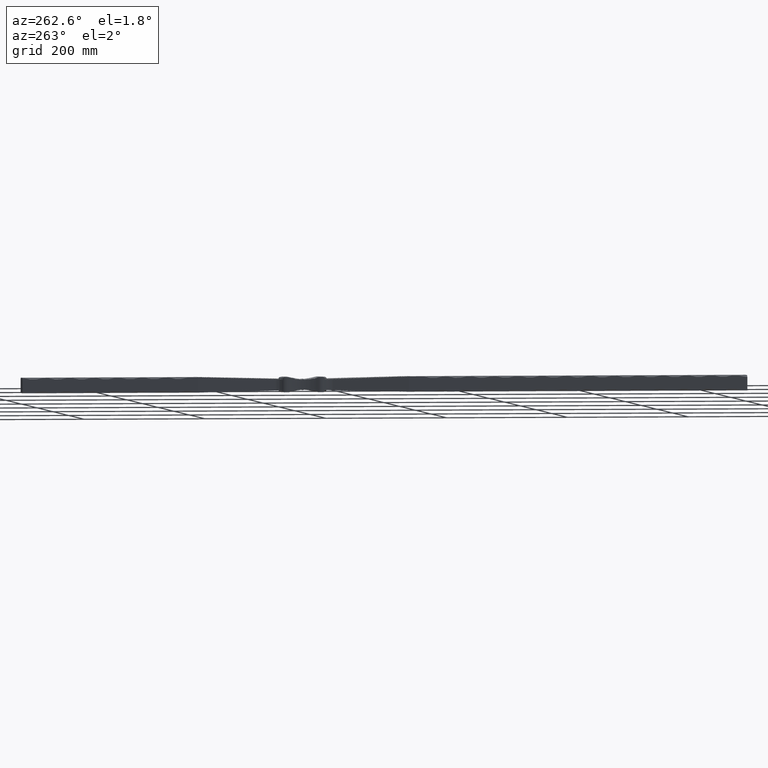
[diagram: clean part render]
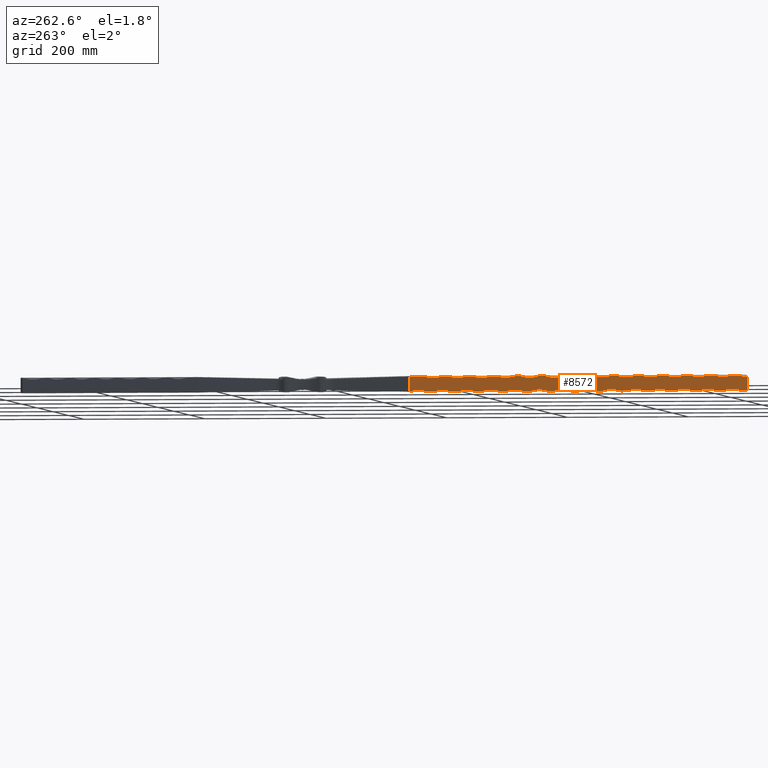
[diagram: same view with one face highlighted and labeled with its STEP entity id]
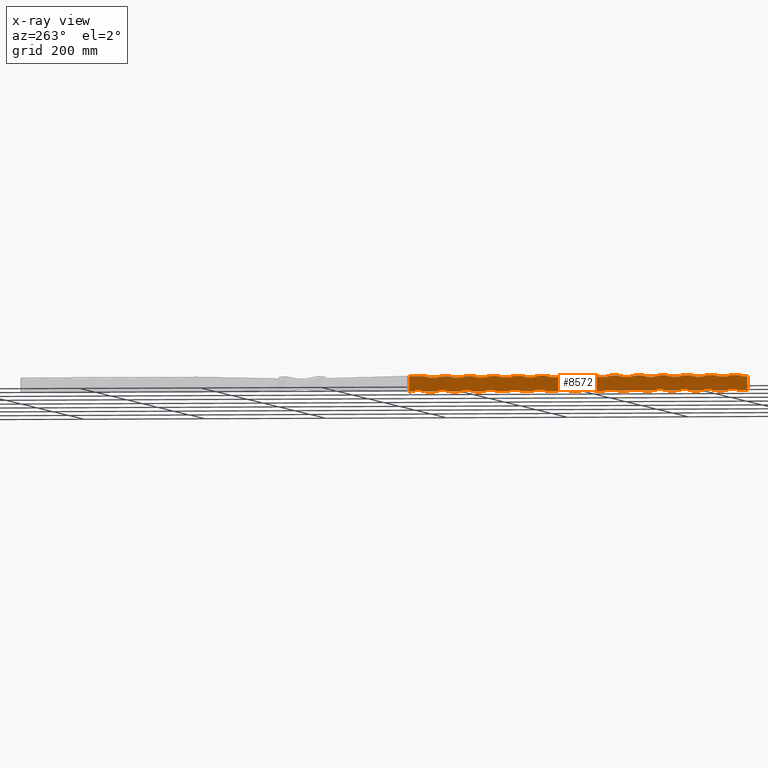
[diagram: x-ray of the same camera — body ghosted, the highlighted face saturated]
A machine part, auxiliary view. The second image highlights one B-rep face of the part: STEP entity #8572.
The next image is the same camera in x-ray: the body ghosted, the highlighted face saturated — about 0% of this face is hidden behind the body in this view.
In plain terms, the highlighted planar face has unit normal (1, 0, -0).
Its self-contained STEP definition (entity closure, byte-faithful):
#27 = DIRECTION ( 'NONE',  ( -1.500301384628588400E-16, 0.000000000000000000, -1.000000000000000000 ) ) ;
#43 = DIRECTION ( 'NONE',  ( -0.000000000000000000, -1.000000000000000000, -0.000000000000000000 ) ) ;
#110 = VERTEX_POINT ( 'NONE', #2575 ) ;
#187 = ORIENTED_EDGE ( 'NONE', *, *, #38615, .F. ) ;
#249 = EDGE_CURVE ( 'NONE', #14212, #19710, #26442, .T. ) ;
#343 = EDGE_CURVE ( 'NONE', #16318, #9540, #40575, .T. ) ;
#345 = VERTEX_POINT ( 'NONE', #5044 ) ;
#428 = ORIENTED_EDGE ( 'NONE', *, *, #8434, .T. ) ;
#446 = VERTEX_POINT ( 'NONE', #22291 ) ;
#491 = DIRECTION ( 'NONE',  ( 1.000000000000000000, 0.000000000000000000, -1.387778780781445676E-16 ) ) ;
#977 = CARTESIAN_POINT ( 'NONE',  ( -12.50000000000000178, 560.0000000000000000, -12.50000000000000000 ) ) ;
#1097 = CARTESIAN_POINT ( 'NONE',  ( -12.49999999999999822, 560.0000000000000000, 12.50000000000000000 ) ) ;
#1100 = EDGE_CURVE ( 'NONE', #5928, #26153, #34288, .T. ) ;
#1894 = VERTEX_POINT ( 'NONE', #25773 ) ;
#1989 = ORIENTED_EDGE ( 'NONE', *, *, #14621, .F. ) ;
#2013 = CARTESIAN_POINT ( 'NONE',  ( -12.49999999999997513, 160.0000000000000284, 56.25000000000004974 ) ) ;
#2065 = EDGE_CURVE ( 'NONE', #19857, #8097, #44931, .T. ) ;
#2107 = VECTOR ( 'NONE', #12495, 1000.000000000000000 ) ;
#2151 = EDGE_CURVE ( 'NONE', #23987, #14212, #11104, .T. ) ;
#2243 = EDGE_CURVE ( 'NONE', #40638, #20077, #26868, .T. ) ;
#2387 = DIRECTION ( 'NONE',  ( -0.000000000000000000, -1.000000000000000000, -0.000000000000000000 ) ) ;
#2522 = VERTEX_POINT ( 'NONE', #4083 ) ;
#2575 = CARTESIAN_POINT ( 'NONE',  ( -12.50000000000000178, 0.000000000000000000, -12.50000000000000000 ) ) ;
#2597 = LINE ( 'NONE', #5432, #8208 ) ;
#2660 = VECTOR ( 'NONE', #27444, 1000.000000000000000 ) ;
#2815 = EDGE_CURVE ( 'NONE', #46438, #28044, #15583, .T. ) ;
#2890 = CARTESIAN_POINT ( 'NONE',  ( -12.50000000000001066, 425.0000000000000568, -56.25000000000004974 ) ) ;
#2907 = EDGE_CURVE ( 'NONE', #34585, #32897, #12154, .T. ) ;
#3086 = CIRCLE ( 'NONE', #27284, 46.25000000000004263 ) ;
#3091 = ORIENTED_EDGE ( 'NONE', *, *, #29567, .F. ) ;
#3160 = ORIENTED_EDGE ( 'NONE', *, *, #12860, .T. ) ;
#3223 = CARTESIAN_POINT ( 'NONE',  ( -12.49999999999998579, 135.0000000000000284, 12.50000000000000000 ) ) ;
#3234 = AXIS2_PLACEMENT_3D ( 'NONE', #20227, #30431, #12502 ) ;
#3317 = CIRCLE ( 'NONE', #19845, 46.25000000000004263 ) ;
#3323 = EDGE_CURVE ( 'NONE', #32165, #45237, #7608, .T. ) ;
#3507 = VERTEX_POINT ( 'NONE', #23798 ) ;
#3535 = CARTESIAN_POINT ( 'NONE',  ( -12.50000000000000355, 250.0000000000000000, -12.49999999999999645 ) ) ;
#3606 = EDGE_CURVE ( 'NONE', #10116, #32165, #44846, .T. ) ;
#3608 = DIRECTION ( 'NONE',  ( -1.500301384628588400E-16, -7.201446646217224322E-15, -1.000000000000000000 ) ) ;
#3657 = ORIENTED_EDGE ( 'NONE', *, *, #40237, .T. ) ;
#3710 = AXIS2_PLACEMENT_3D ( 'NONE', #31624, #6101, #42356 ) ;
#3732 = ORIENTED_EDGE ( 'NONE', *, *, #41627, .F. ) ;
#3761 = EDGE_CURVE ( 'NONE', #345, #25442, #43120, .T. ) ;
#3821 = CARTESIAN_POINT ( 'NONE',  ( -12.50000000000000355, 480.0000000000000000, -12.49999999999999645 ) ) ;
#3881 = EDGE_CURVE ( 'NONE', #19710, #9174, #31262, .T. ) ;
#3938 = CARTESIAN_POINT ( 'NONE',  ( -12.49999999999999822, 560.0000000000000000, 12.50000000000000000 ) ) ;
#4020 = EDGE_CURVE ( 'NONE', #31723, #28780, #12103, .T. ) ;
#4063 = CARTESIAN_POINT ( 'NONE',  ( -12.50000000000000178, 560.0000000000000000, -12.50000000000000000 ) ) ;
#4083 = CARTESIAN_POINT ( 'NONE',  ( -12.49999999999999645, 105.0000000000000000, 12.50000000000000000 ) ) ;
#4112 = DIRECTION ( 'NONE',  ( -0.000000000000000000, -1.000000000000000000, -0.000000000000000000 ) ) ;
#4616 = DIRECTION ( 'NONE',  ( -1.500301384628588647E-16, 0.000000000000000000, -1.000000000000000000 ) ) ;
#4637 = DIRECTION ( 'NONE',  ( -0.000000000000000000, -1.000000000000000000, -0.000000000000000000 ) ) ;
#4704 = CARTESIAN_POINT ( 'NONE',  ( -12.50000000000000355, 530.0000000000000000, -12.49999999999999645 ) ) ;
#4869 = VERTEX_POINT ( 'NONE', #19097 ) ;
#4878 = ORIENTED_EDGE ( 'NONE', *, *, #3881, .T. ) ;
#4886 = DIRECTION ( 'NONE',  ( -1.500301384628588400E-16, 0.000000000000000000, -1.000000000000000000 ) ) ;
#5030 = VECTOR ( 'NONE', #4112, 1000.000000000000000 ) ;
#5044 = CARTESIAN_POINT ( 'NONE',  ( -12.49999999999999645, 305.0000000000000000, 12.50000000000000000 ) ) ;
#5340 = AXIS2_PLACEMENT_3D ( 'NONE', #37337, #44288, #15753 ) ;
#5429 = DIRECTION ( 'NONE',  ( -1.000000000000000000, -0.000000000000000000, 1.387778780781445676E-16 ) ) ;
#5432 = CARTESIAN_POINT ( 'NONE',  ( -12.49999999999999822, 560.0000000000000000, 12.50000000000000000 ) ) ;
#5461 = ORIENTED_EDGE ( 'NONE', *, *, #38900, .F. ) ;
#5563 = ORIENTED_EDGE ( 'NONE', *, *, #15870, .F. ) ;
#5617 = DIRECTION ( 'NONE',  ( -1.000000000000000000, -0.000000000000000000, 1.387778780781445676E-16 ) ) ;
#5854 = CIRCLE ( 'NONE', #46258, 46.25000000000004974 ) ;
#5917 = ORIENTED_EDGE ( 'NONE', *, *, #2065, .T. ) ;
#5928 = VERTEX_POINT ( 'NONE', #6411 ) ;
#6021 = CIRCLE ( 'NONE', #40757, 46.25000000000004974 ) ;
#6101 = DIRECTION ( 'NONE',  ( 1.000000000000000000, 0.000000000000000000, -1.387778780781445676E-16 ) ) ;
#6112 = CARTESIAN_POINT ( 'NONE',  ( -12.50000000000000178, 0.000000000000000000, -12.50000000000000000 ) ) ;
#6152 = AXIS2_PLACEMENT_3D ( 'NONE', #39158, #7140, #10459 ) ;
#6240 = ORIENTED_EDGE ( 'NONE', *, *, #36744, .F. ) ;
#6307 = DIRECTION ( 'NONE',  ( 1.000000000000000000, 0.000000000000000000, -1.387778780781445676E-16 ) ) ;
#6411 = CARTESIAN_POINT ( 'NONE',  ( -12.49999999999998046, 215.0000000000000284, 12.50000000000000000 ) ) ;
#6735 = CARTESIAN_POINT ( 'NONE',  ( -12.50000000000000178, 560.0000000000000000, -12.50000000000000000 ) ) ;
#6972 = ORIENTED_EDGE ( 'NONE', *, *, #32325, .T. ) ;
#7028 = CARTESIAN_POINT ( 'NONE',  ( -12.50000000000000355, 370.0000000000000000, -12.49999999999999645 ) ) ;
#7055 = ORIENTED_EDGE ( 'NONE', *, *, #32860, .F. ) ;
#7098 = VERTEX_POINT ( 'NONE', #34811 ) ;
#7140 = DIRECTION ( 'NONE',  ( -1.000000000000000000, -0.000000000000000000, 1.387778780781445676E-16 ) ) ;
#7251 = AXIS2_PLACEMENT_3D ( 'NONE', #10732, #46691, #25405 ) ;
#7315 = DIRECTION ( 'NONE',  ( 1.000000000000000000, 0.000000000000000000, -1.387778780781445676E-16 ) ) ;
#7355 = CARTESIAN_POINT ( 'NONE',  ( -12.50000000000000355, 200.0000000000000000, -12.49999999999999645 ) ) ;
#7479 = CARTESIAN_POINT ( 'NONE',  ( -12.49999999999998757, 95.00000000000002842, 12.50000000000000000 ) ) ;
#7556 = VECTOR ( 'NONE', #22045, 1000.000000000000000 ) ;
#7608 = CIRCLE ( 'NONE', #10572, 46.25000000000004263 ) ;
#7657 = VERTEX_POINT ( 'NONE', #33741 ) ;
#7683 = DIRECTION ( 'NONE',  ( -0.000000000000000000, -1.000000000000000000, -0.000000000000000000 ) ) ;
#7809 = DIRECTION ( 'NONE',  ( -1.500301384628588400E-16, 0.000000000000000000, -1.000000000000000000 ) ) ;
#8016 = CARTESIAN_POINT ( 'NONE',  ( -12.49999999999996447, 320.0000000000000568, 56.25000000000004974 ) ) ;
#8017 = CARTESIAN_POINT ( 'NONE',  ( -12.50000000000000355, 90.00000000000002842, -12.49999999999999645 ) ) ;
#8097 = VERTEX_POINT ( 'NONE', #18597 ) ;
#8170 = CARTESIAN_POINT ( 'NONE',  ( -12.50000000000000355, 279.9999999999999432, -12.49999999999999645 ) ) ;
#8208 = VECTOR ( 'NONE', #8885, 1000.000000000000000 ) ;
#8270 = ORIENTED_EDGE ( 'NONE', *, *, #11725, .T. ) ;
#8434 = EDGE_CURVE ( 'NONE', #30592, #14331, #45699, .T. ) ;
#8572 = ADVANCED_FACE ( 'NONE', ( #36662 ), #15844, .F. ) ;
#8619 = CARTESIAN_POINT ( 'NONE',  ( -12.49999999999999822, 560.0000000000000000, 12.50000000000000000 ) ) ;
#8785 = AXIS2_PLACEMENT_3D ( 'NONE', #2013, #34308, #21093 ) ;
#8885 = DIRECTION ( 'NONE',  ( -0.000000000000000000, -1.000000000000000000, -0.000000000000000000 ) ) ;
#8896 = ORIENTED_EDGE ( 'NONE', *, *, #28645, .T. ) ;
#8951 = EDGE_CURVE ( 'NONE', #28044, #14873, #16375, .T. ) ;
#9125 = CARTESIAN_POINT ( 'NONE',  ( -12.49999999999996092, 360.0000000000000568, 56.25000000000004974 ) ) ;
#9172 = VECTOR ( 'NONE', #35917, 1000.000000000000000 ) ;
#9174 = VERTEX_POINT ( 'NONE', #3821 ) ;
#9250 = DIRECTION ( 'NONE',  ( -0.000000000000000000, -1.000000000000000000, -0.000000000000000000 ) ) ;
#9267 = ORIENTED_EDGE ( 'NONE', *, *, #25685, .F. ) ;
#9354 = CIRCLE ( 'NONE', #18832, 46.25000000000004263 ) ;
#9503 = CARTESIAN_POINT ( 'NONE',  ( -12.50000000000001066, 385.0000000000000000, -56.25000000000004974 ) ) ;
#9540 = VERTEX_POINT ( 'NONE', #14223 ) ;
#9615 = CARTESIAN_POINT ( 'NONE',  ( -12.49999999999997691, 255.0000000000000568, 12.50000000000000000 ) ) ;
#9800 = VECTOR ( 'NONE', #19638, 1000.000000000000000 ) ;
#9858 = VECTOR ( 'NONE', #17371, 1000.000000000000000 ) ;
#10070 = EDGE_CURVE ( 'NONE', #7098, #23987, #3317, .T. ) ;
#10116 = VERTEX_POINT ( 'NONE', #8017 ) ;
#10459 = DIRECTION ( 'NONE',  ( -1.500301384628588400E-16, -7.201446646217224322E-15, -1.000000000000000000 ) ) ;
#10513 = ORIENTED_EDGE ( 'NONE', *, *, #28752, .T. ) ;
#10548 = LINE ( 'NONE', #6112, #28582 ) ;
#10553 = DIRECTION ( 'NONE',  ( -1.500301384628588400E-16, 0.000000000000000000, -1.000000000000000000 ) ) ;
#10572 = AXIS2_PLACEMENT_3D ( 'NONE', #43528, #11071, #11383 ) ;
#10654 = CARTESIAN_POINT ( 'NONE',  ( -12.49999999999995204, 480.0000000000000568, 56.25000000000004974 ) ) ;
#10732 = CARTESIAN_POINT ( 'NONE',  ( -12.49999999999996625, 280.0000000000000000, 56.25000000000004974 ) ) ;
#10890 = ORIENTED_EDGE ( 'NONE', *, *, #37178, .T. ) ;
#11071 = DIRECTION ( 'NONE',  ( 1.000000000000000000, 0.000000000000000000, -1.387778780781445676E-16 ) ) ;
#11104 = LINE ( 'NONE', #13286, #2660 ) ;
#11198 = CARTESIAN_POINT ( 'NONE',  ( -12.50000000000001066, 505.0000000000000000, -56.25000000000004974 ) ) ;
#11218 = VECTOR ( 'NONE', #43, 1000.000000000000000 ) ;
#11383 = DIRECTION ( 'NONE',  ( -1.500301384628588647E-16, 0.000000000000000000, -1.000000000000000000 ) ) ;
#11588 = CARTESIAN_POINT ( 'NONE',  ( -12.49999999999997158, 335.0000000000000568, 12.50000000000000000 ) ) ;
#11649 = CARTESIAN_POINT ( 'NONE',  ( -12.50000000000000355, 130.0000000000000000, -12.49999999999999645 ) ) ;
#11687 = LINE ( 'NONE', #26820, #2107 ) ;
#11725 = EDGE_CURVE ( 'NONE', #20452, #7098, #23541, .T. ) ;
#11745 = CARTESIAN_POINT ( 'NONE',  ( -12.50000000000000355, 440.0000000000000000, -12.49999999999999645 ) ) ;
#11944 = DIRECTION ( 'NONE',  ( -1.500301384628588400E-16, 0.000000000000000000, -1.000000000000000000 ) ) ;
#12029 = LINE ( 'NONE', #3938, #38526 ) ;
#12103 = CIRCLE ( 'NONE', #23031, 46.25000000000004974 ) ;
#12154 = LINE ( 'NONE', #44345, #38640 ) ;
#12300 = EDGE_CURVE ( 'NONE', #38552, #21418, #6021, .T. ) ;
#12326 = CIRCLE ( 'NONE', #3234, 46.25000000000004263 ) ;
#12495 = DIRECTION ( 'NONE',  ( -0.000000000000000000, -1.000000000000000000, -0.000000000000000000 ) ) ;
#12502 = DIRECTION ( 'NONE',  ( -1.500301384628588647E-16, 0.000000000000000000, -1.000000000000000000 ) ) ;
#12552 = VERTEX_POINT ( 'NONE', #18327 ) ;
#12860 = EDGE_CURVE ( 'NONE', #20077, #10116, #28037, .T. ) ;
#12951 = EDGE_CURVE ( 'NONE', #110, #21240, #10548, .T. ) ;
#12978 = DIRECTION ( 'NONE',  ( -1.500301384628588400E-16, 0.000000000000000000, -1.000000000000000000 ) ) ;
#13013 = DIRECTION ( 'NONE',  ( -0.000000000000000000, -1.000000000000000000, -0.000000000000000000 ) ) ;
#13268 = ORIENTED_EDGE ( 'NONE', *, *, #1100, .F. ) ;
#13286 = CARTESIAN_POINT ( 'NONE',  ( -12.50000000000000178, 560.0000000000000000, -12.50000000000000000 ) ) ;
#13290 = CARTESIAN_POINT ( 'NONE',  ( -12.50000000000000355, 120.0000000000000000, -12.49999999999999645 ) ) ;
#13586 = EDGE_CURVE ( 'NONE', #446, #31723, #17851, .T. ) ;
#13666 = ORIENTED_EDGE ( 'NONE', *, *, #42388, .F. ) ;
#13703 = CARTESIAN_POINT ( 'NONE',  ( -12.49999999999999645, 425.0000000000000000, 12.50000000000000000 ) ) ;
#13801 = CARTESIAN_POINT ( 'NONE',  ( -12.50000000000000355, 10.00000000000001421, -12.49999999999999645 ) ) ;
#14115 = EDGE_CURVE ( 'NONE', #14725, #38552, #24000, .T. ) ;
#14212 = VERTEX_POINT ( 'NONE', #39298 ) ;
#14223 = CARTESIAN_POINT ( 'NONE',  ( -12.49999999999999645, 64.99999999999998579, 12.50000000000000000 ) ) ;
#14270 = CARTESIAN_POINT ( 'NONE',  ( -12.50000000000000178, 560.0000000000000000, -12.50000000000000000 ) ) ;
#14331 = VERTEX_POINT ( 'NONE', #32524 ) ;
#14349 = CARTESIAN_POINT ( 'NONE',  ( -12.50000000000001066, 225.0000000000000000, -56.25000000000004974 ) ) ;
#14367 = CARTESIAN_POINT ( 'NONE',  ( -12.49999999999997868, 120.0000000000000284, 56.25000000000004974 ) ) ;
#14422 = ORIENTED_EDGE ( 'NONE', *, *, #28061, .T. ) ;
#14621 = EDGE_CURVE ( 'NONE', #3507, #29790, #19489, .T. ) ;
#14725 = VERTEX_POINT ( 'NONE', #25848 ) ;
#14759 = ORIENTED_EDGE ( 'NONE', *, *, #2815, .T. ) ;
#14765 = DIRECTION ( 'NONE',  ( -0.000000000000000000, -1.000000000000000000, -0.000000000000000000 ) ) ;
#14820 = DIRECTION ( 'NONE',  ( -1.500301384628588647E-16, 0.000000000000000000, -1.000000000000000000 ) ) ;
#14873 = VERTEX_POINT ( 'NONE', #8170 ) ;
#14924 = ORIENTED_EDGE ( 'NONE', *, *, #343, .F. ) ;
#15007 = EDGE_CURVE ( 'NONE', #9174, #24621, #31857, .T. ) ;
#15046 = CARTESIAN_POINT ( 'NONE',  ( -12.50000000000000355, 490.0000000000000000, -12.49999999999999645 ) ) ;
#15063 = CIRCLE ( 'NONE', #29202, 46.25000000000004263 ) ;
#15184 = CARTESIAN_POINT ( 'NONE',  ( -12.49999999999999112, 560.0000000000000000, 12.50000000000000000 ) ) ;
#15198 = CIRCLE ( 'NONE', #40021, 46.25000000000004263 ) ;
#15294 = DIRECTION ( 'NONE',  ( -0.000000000000000000, -1.000000000000000000, -0.000000000000000000 ) ) ;
#15460 = EDGE_CURVE ( 'NONE', #26387, #30693, #3086, .T. ) ;
#15488 = VECTOR ( 'NONE', #34048, 1000.000000000000000 ) ;
#15490 = ORIENTED_EDGE ( 'NONE', *, *, #33010, .T. ) ;
#15503 = DIRECTION ( 'NONE',  ( -0.000000000000000000, -1.000000000000000000, -0.000000000000000000 ) ) ;
#15583 = CIRCLE ( 'NONE', #31979, 46.25000000000004263 ) ;
#15600 = DIRECTION ( 'NONE',  ( -1.000000000000000000, -0.000000000000000000, 1.387778780781445676E-16 ) ) ;
#15646 = ORIENTED_EDGE ( 'NONE', *, *, #15460, .T. ) ;
#15753 = DIRECTION ( 'NONE',  ( -1.500301384628588400E-16, 0.000000000000000000, -1.000000000000000000 ) ) ;
#15829 = CARTESIAN_POINT ( 'NONE',  ( -12.49999999999999822, 560.0000000000000000, 12.50000000000000000 ) ) ;
#15844 = PLANE ( 'NONE',  #22807 ) ;
#15869 = DIRECTION ( 'NONE',  ( -1.500301384628588647E-16, 0.000000000000000000, -1.000000000000000000 ) ) ;
#15870 = EDGE_CURVE ( 'NONE', #1894, #3507, #5854, .T. ) ;
#15877 = CARTESIAN_POINT ( 'NONE',  ( -12.49999999999998401, 2.081668171172168513E-14, 56.25000000000004974 ) ) ;
#15909 = AXIS2_PLACEMENT_3D ( 'NONE', #16311, #5429, #45282 ) ;
#16311 = CARTESIAN_POINT ( 'NONE',  ( -12.49999999999995914, 400.0000000000000000, 56.25000000000004974 ) ) ;
#16318 = VERTEX_POINT ( 'NONE', #7479 ) ;
#16373 = VERTEX_POINT ( 'NONE', #11588 ) ;
#16375 = LINE ( 'NONE', #23060, #42847 ) ;
#16470 = AXIS2_PLACEMENT_3D ( 'NONE', #15877, #5617, #30819 ) ;
#16483 = DIRECTION ( 'NONE',  ( -1.387778780781445676E-16, 0.000000000000000000, -1.000000000000000000 ) ) ;
#16492 = EDGE_CURVE ( 'NONE', #26153, #36807, #19952, .T. ) ;
#16701 = VECTOR ( 'NONE', #33492, 1000.000000000000000 ) ;
#16726 = VECTOR ( 'NONE', #15503, 1000.000000000000000 ) ;
#16866 = CARTESIAN_POINT ( 'NONE',  ( -12.49999999999999822, 560.0000000000000000, 12.50000000000000000 ) ) ;
#17179 = CARTESIAN_POINT ( 'NONE',  ( -12.49999999999999645, 504.9999999999998863, 12.50000000000000000 ) ) ;
#17227 = DIRECTION ( 'NONE',  ( -1.500301384628588647E-16, 0.000000000000000000, -1.000000000000000000 ) ) ;
#17332 = DIRECTION ( 'NONE',  ( -1.500301384628588647E-16, 0.000000000000000000, -1.000000000000000000 ) ) ;
#17371 = DIRECTION ( 'NONE',  ( -0.000000000000000000, -1.000000000000000000, -0.000000000000000000 ) ) ;
#17383 = CARTESIAN_POINT ( 'NONE',  ( -12.49999999999995737, 535.0000000000000000, 12.50000000000000000 ) ) ;
#17514 = CARTESIAN_POINT ( 'NONE',  ( -12.49999999999999822, 560.0000000000000000, 12.50000000000000000 ) ) ;
#17722 = ORIENTED_EDGE ( 'NONE', *, *, #3761, .F. ) ;
#17830 = DIRECTION ( 'NONE',  ( -0.000000000000000000, -1.000000000000000000, -0.000000000000000000 ) ) ;
#17851 = LINE ( 'NONE', #28732, #16726 ) ;
#18004 = DIRECTION ( 'NONE',  ( -1.000000000000000000, -0.000000000000000000, 1.387778780781445676E-16 ) ) ;
#18016 = VECTOR ( 'NONE', #15294, 1000.000000000000000 ) ;
#18052 = AXIS2_PLACEMENT_3D ( 'NONE', #8016, #15600, #4886 ) ;
#18165 = ORIENTED_EDGE ( 'NONE', *, *, #2243, .T. ) ;
#18327 = CARTESIAN_POINT ( 'NONE',  ( -12.49999999999999645, 384.9999999999999432, 12.50000000000000000 ) ) ;
#18597 = CARTESIAN_POINT ( 'NONE',  ( -12.50000000000000355, 410.0000000000000568, -12.49999999999999645 ) ) ;
#18667 = DIRECTION ( 'NONE',  ( -0.000000000000000000, -0.000000000000000000, -1.000000000000000000 ) ) ;
#18832 = AXIS2_PLACEMENT_3D ( 'NONE', #14349, #40041, #14820 ) ;
#18852 = LINE ( 'NONE', #22788, #9800 ) ;
#18874 = CIRCLE ( 'NONE', #32609, 46.25000000000004263 ) ;
#18914 = ORIENTED_EDGE ( 'NONE', *, *, #23188, .F. ) ;
#19097 = CARTESIAN_POINT ( 'NONE',  ( -12.49999999999999645, 345.0000000000000000, 12.50000000000000000 ) ) ;
#19394 = EDGE_CURVE ( 'NONE', #29790, #21240, #32130, .T. ) ;
#19435 = ORIENTED_EDGE ( 'NONE', *, *, #10070, .T. ) ;
#19489 = LINE ( 'NONE', #17514, #9858 ) ;
#19638 = DIRECTION ( 'NONE',  ( -0.000000000000000000, -1.000000000000000000, -0.000000000000000000 ) ) ;
#19676 = ORIENTED_EDGE ( 'NONE', *, *, #20288, .F. ) ;
#19703 = VERTEX_POINT ( 'NONE', #22146 ) ;
#19710 = VERTEX_POINT ( 'NONE', #15046 ) ;
#19845 = AXIS2_PLACEMENT_3D ( 'NONE', #44285, #40817, #26300 ) ;
#19857 = VERTEX_POINT ( 'NONE', #11745 ) ;
#19952 = LINE ( 'NONE', #15829, #24442 ) ;
#20077 = VERTEX_POINT ( 'NONE', #13290 ) ;
#20089 = VERTEX_POINT ( 'NONE', #17383 ) ;
#20210 = DIRECTION ( 'NONE',  ( -0.000000000000000000, -1.000000000000000000, -0.000000000000000000 ) ) ;
#20227 = CARTESIAN_POINT ( 'NONE',  ( -12.50000000000001066, 265.0000000000000000, -56.25000000000004974 ) ) ;
#20288 = EDGE_CURVE ( 'NONE', #23138, #2522, #43897, .T. ) ;
#20315 = CARTESIAN_POINT ( 'NONE',  ( -12.50000000000000355, 170.0000000000000000, -12.49999999999999645 ) ) ;
#20452 = VERTEX_POINT ( 'NONE', #31179 ) ;
#20472 = CARTESIAN_POINT ( 'NONE',  ( -12.50000000000000355, 40.00000000000000000, -12.49999999999999645 ) ) ;
#20563 = DIRECTION ( 'NONE',  ( -1.000000000000000000, -0.000000000000000000, 1.387778780781445676E-16 ) ) ;
#20625 = ORIENTED_EDGE ( 'NONE', *, *, #22628, .F. ) ;
#20636 = CARTESIAN_POINT ( 'NONE',  ( -12.50000000000000178, 560.0000000000000000, -12.50000000000000000 ) ) ;
#21093 = DIRECTION ( 'NONE',  ( -1.500301384628588400E-16, 0.000000000000000000, -1.000000000000000000 ) ) ;
#21240 = VERTEX_POINT ( 'NONE', #41265 ) ;
#21322 = CARTESIAN_POINT ( 'NONE',  ( -12.50000000000000355, 360.0000000000000000, -12.49999999999999645 ) ) ;
#21418 = VERTEX_POINT ( 'NONE', #40127 ) ;
#21697 = ORIENTED_EDGE ( 'NONE', *, *, #41549, .T. ) ;
#22045 = DIRECTION ( 'NONE',  ( -0.000000000000000000, -1.000000000000000000, -0.000000000000000000 ) ) ;
#22146 = CARTESIAN_POINT ( 'NONE',  ( -12.49999999999996625, 415.0000000000000568, 12.50000000000000000 ) ) ;
#22203 = CARTESIAN_POINT ( 'NONE',  ( -12.49999999999999112, 15.00000000000002665, 12.50000000000000000 ) ) ;
#22291 = CARTESIAN_POINT ( 'NONE',  ( -12.49999999999999645, 464.9999999999998863, 12.50000000000000000 ) ) ;
#22351 = CARTESIAN_POINT ( 'NONE',  ( -12.49999999999999822, 560.0000000000000000, 12.50000000000000000 ) ) ;
#22430 = EDGE_CURVE ( 'NONE', #38697, #23138, #33238, .T. ) ;
#22460 = DIRECTION ( 'NONE',  ( -0.000000000000000000, -1.000000000000000000, -0.000000000000000000 ) ) ;
#22524 = VECTOR ( 'NONE', #9250, 1000.000000000000000 ) ;
#22628 = EDGE_CURVE ( 'NONE', #12552, #7657, #44494, .T. ) ;
#22788 = CARTESIAN_POINT ( 'NONE',  ( -12.50000000000000178, 560.0000000000000000, -12.50000000000000000 ) ) ;
#22807 = AXIS2_PLACEMENT_3D ( 'NONE', #45303, #45146, #16483 ) ;
#22877 = DIRECTION ( 'NONE',  ( 1.000000000000000000, 0.000000000000000000, -1.387778780781445676E-16 ) ) ;
#22896 = LINE ( 'NONE', #26231, #16701 ) ;
#23031 = AXIS2_PLACEMENT_3D ( 'NONE', #41094, #44408, #11944 ) ;
#23055 = ORIENTED_EDGE ( 'NONE', *, *, #2151, .T. ) ;
#23060 = CARTESIAN_POINT ( 'NONE',  ( -12.50000000000000178, 560.0000000000000000, -12.50000000000000000 ) ) ;
#23138 = VERTEX_POINT ( 'NONE', #3223 ) ;
#23188 = EDGE_CURVE ( 'NONE', #28780, #19703, #46164, .T. ) ;
#23212 = VERTEX_POINT ( 'NONE', #3535 ) ;
#23541 = LINE ( 'NONE', #15184, #38765 ) ;
#23642 = ORIENTED_EDGE ( 'NONE', *, *, #14115, .F. ) ;
#23703 = ORIENTED_EDGE ( 'NONE', *, *, #249, .T. ) ;
#23798 = CARTESIAN_POINT ( 'NONE',  ( -12.49999999999999645, 25.00000000000001421, 12.50000000000000000 ) ) ;
#23952 = VECTOR ( 'NONE', #24418, 1000.000000000000000 ) ;
#23987 = VERTEX_POINT ( 'NONE', #4704 ) ;
#24000 = LINE ( 'NONE', #8619, #24579 ) ;
#24418 = DIRECTION ( 'NONE',  ( -0.000000000000000000, -1.000000000000000000, -0.000000000000000000 ) ) ;
#24442 = VECTOR ( 'NONE', #22460, 1000.000000000000000 ) ;
#24452 = AXIS2_PLACEMENT_3D ( 'NONE', #34955, #42070, #17332 ) ;
#24579 = VECTOR ( 'NONE', #41097, 1000.000000000000000 ) ;
#24621 = VERTEX_POINT ( 'NONE', #41822 ) ;
#24656 = VERTEX_POINT ( 'NONE', #21322 ) ;
#24769 = EDGE_CURVE ( 'NONE', #25442, #14725, #42197, .T. ) ;
#24927 = CIRCLE ( 'NONE', #15909, 46.25000000000004974 ) ;
#25184 = CARTESIAN_POINT ( 'NONE',  ( -12.50000000000000355, 399.9999999999999432, -12.49999999999999645 ) ) ;
#25253 = CARTESIAN_POINT ( 'NONE',  ( -12.50000000000001066, 185.0000000000000000, -56.25000000000004974 ) ) ;
#25405 = DIRECTION ( 'NONE',  ( -1.500301384628588400E-16, 0.000000000000000000, -1.000000000000000000 ) ) ;
#25442 = VERTEX_POINT ( 'NONE', #29986 ) ;
#25479 = VERTEX_POINT ( 'NONE', #35674 ) ;
#25685 = EDGE_CURVE ( 'NONE', #4869, #16373, #11687, .T. ) ;
#25773 = CARTESIAN_POINT ( 'NONE',  ( -12.49999999999999112, 55.00000000000002842, 12.50000000000000000 ) ) ;
#25848 = CARTESIAN_POINT ( 'NONE',  ( -12.49999999999999645, 264.9999999999999432, 12.50000000000000000 ) ) ;
#25949 = DIRECTION ( 'NONE',  ( -0.000000000000000000, -1.000000000000000000, -0.000000000000000000 ) ) ;
#26023 = EDGE_CURVE ( 'NONE', #30672, #34585, #9354, .T. ) ;
#26153 = VERTEX_POINT ( 'NONE', #37648 ) ;
#26231 = CARTESIAN_POINT ( 'NONE',  ( -12.50000000000000178, 560.0000000000000000, -12.50000000000000000 ) ) ;
#26278 = VERTEX_POINT ( 'NONE', #20472 ) ;
#26300 = DIRECTION ( 'NONE',  ( -1.500301384628588647E-16, 0.000000000000000000, -1.000000000000000000 ) ) ;
#26387 = VERTEX_POINT ( 'NONE', #25184 ) ;
#26389 = CARTESIAN_POINT ( 'NONE',  ( -12.50000000000000355, 290.0000000000000568, -12.49999999999999645 ) ) ;
#26418 = CARTESIAN_POINT ( 'NONE',  ( -12.50000000000001066, 145.0000000000000000, -56.25000000000004974 ) ) ;
#26442 = CIRCLE ( 'NONE', #40060, 46.25000000000004263 ) ;
#26471 = DIRECTION ( 'NONE',  ( -1.500301384628588647E-16, 0.000000000000000000, -1.000000000000000000 ) ) ;
#26615 = EDGE_CURVE ( 'NONE', #35378, #46438, #41489, .T. ) ;
#26820 = CARTESIAN_POINT ( 'NONE',  ( -12.49999999999999822, 560.0000000000000000, 12.50000000000000000 ) ) ;
#26868 = LINE ( 'NONE', #14270, #38729 ) ;
#27284 = AXIS2_PLACEMENT_3D ( 'NONE', #9503, #45620, #34741 ) ;
#27444 = DIRECTION ( 'NONE',  ( -0.000000000000000000, -1.000000000000000000, -0.000000000000000000 ) ) ;
#27755 = CARTESIAN_POINT ( 'NONE',  ( -12.50000000000000355, 320.0000000000000000, -12.49999999999999645 ) ) ;
#27828 = EDGE_CURVE ( 'NONE', #25479, #446, #31842, .T. ) ;
#27859 = CARTESIAN_POINT ( 'NONE',  ( -12.49999999999999822, 560.0000000000000000, 12.50000000000000000 ) ) ;
#27967 = AXIS2_PLACEMENT_3D ( 'NONE', #9125, #31039, #41778 ) ;
#28028 = AXIS2_PLACEMENT_3D ( 'NONE', #2890, #6307, #17227 ) ;
#28037 = CIRCLE ( 'NONE', #24452, 46.25000000000004263 ) ;
#28044 = VERTEX_POINT ( 'NONE', #26389 ) ;
#28061 = EDGE_CURVE ( 'NONE', #8097, #26387, #18852, .T. ) ;
#28340 = VECTOR ( 'NONE', #2387, 1000.000000000000000 ) ;
#28461 = CARTESIAN_POINT ( 'NONE',  ( -12.50000000000000355, 240.0000000000000284, -12.49999999999999645 ) ) ;
#28582 = VECTOR ( 'NONE', #35124, 1000.000000000000000 ) ;
#28645 = EDGE_CURVE ( 'NONE', #45237, #26278, #28930, .T. ) ;
#28732 = CARTESIAN_POINT ( 'NONE',  ( -12.49999999999999822, 560.0000000000000000, 12.50000000000000000 ) ) ;
#28752 = EDGE_CURVE ( 'NONE', #24621, #19857, #35152, .T. ) ;
#28780 = VERTEX_POINT ( 'NONE', #13703 ) ;
#28930 = LINE ( 'NONE', #34978, #28340 ) ;
#29077 = ORIENTED_EDGE ( 'NONE', *, *, #32673, .F. ) ;
#29202 = AXIS2_PLACEMENT_3D ( 'NONE', #33147, #37070, #4616 ) ;
#29280 = VERTEX_POINT ( 'NONE', #13801 ) ;
#29284 = DIRECTION ( 'NONE',  ( -1.500301384628588647E-16, 0.000000000000000000, -1.000000000000000000 ) ) ;
#29381 = DIRECTION ( 'NONE',  ( -1.000000000000000000, -0.000000000000000000, 1.387778780781445676E-16 ) ) ;
#29549 = AXIS2_PLACEMENT_3D ( 'NONE', #26418, #44709, #15869 ) ;
#29567 = EDGE_CURVE ( 'NONE', #19703, #12552, #24927, .T. ) ;
#29703 = CIRCLE ( 'NONE', #18052, 46.25000000000004974 ) ;
#29741 = VECTOR ( 'NONE', #17830, 1000.000000000000000 ) ;
#29790 = VERTEX_POINT ( 'NONE', #22203 ) ;
#29986 = CARTESIAN_POINT ( 'NONE',  ( -12.49999999999997335, 295.0000000000000568, 12.50000000000000000 ) ) ;
#30334 = EDGE_CURVE ( 'NONE', #16373, #345, #29703, .T. ) ;
#30431 = DIRECTION ( 'NONE',  ( 1.000000000000000000, 0.000000000000000000, -1.387778780781445676E-16 ) ) ;
#30592 = VERTEX_POINT ( 'NONE', #20315 ) ;
#30672 = VERTEX_POINT ( 'NONE', #28461 ) ;
#30686 = CARTESIAN_POINT ( 'NONE',  ( -12.49999999999999822, 560.0000000000000000, 12.50000000000000000 ) ) ;
#30693 = VERTEX_POINT ( 'NONE', #7028 ) ;
#30819 = DIRECTION ( 'NONE',  ( -1.500301384628588400E-16, 9.769962616701375978E-15, -1.000000000000000000 ) ) ;
#30947 = ORIENTED_EDGE ( 'NONE', *, *, #38498, .T. ) ;
#31034 = CARTESIAN_POINT ( 'NONE',  ( -12.50000000000000178, 560.0000000000000000, -12.50000000000000000 ) ) ;
#31039 = DIRECTION ( 'NONE',  ( -1.000000000000000000, -0.000000000000000000, 1.387778780781445676E-16 ) ) ;
#31179 = CARTESIAN_POINT ( 'NONE',  ( -12.49999999999999112, 560.0000000000000000, 12.50000000000000000 ) ) ;
#31262 = LINE ( 'NONE', #36226, #7556 ) ;
#31392 = ORIENTED_EDGE ( 'NONE', *, *, #26615, .T. ) ;
#31618 = DIRECTION ( 'NONE',  ( -0.000000000000000000, -1.000000000000000000, -0.000000000000000000 ) ) ;
#31624 = CARTESIAN_POINT ( 'NONE',  ( -12.50000000000001066, 465.0000000000000000, -56.25000000000004974 ) ) ;
#31723 = VERTEX_POINT ( 'NONE', #43042 ) ;
#31759 = ORIENTED_EDGE ( 'NONE', *, *, #3323, .T. ) ;
#31776 = ORIENTED_EDGE ( 'NONE', *, *, #22430, .F. ) ;
#31842 = CIRCLE ( 'NONE', #37295, 46.25000000000004974 ) ;
#31857 = CIRCLE ( 'NONE', #3710, 46.25000000000004263 ) ;
#31979 = AXIS2_PLACEMENT_3D ( 'NONE', #43425, #7315, #32568 ) ;
#32130 = CIRCLE ( 'NONE', #16470, 46.25000000000004974 ) ;
#32142 = CARTESIAN_POINT ( 'NONE',  ( -12.49999999999998401, 40.00000000000002132, 56.25000000000004974 ) ) ;
#32165 = VERTEX_POINT ( 'NONE', #36156 ) ;
#32286 = VECTOR ( 'NONE', #31618, 1000.000000000000000 ) ;
#32325 = EDGE_CURVE ( 'NONE', #24656, #35378, #18874, .T. ) ;
#32524 = CARTESIAN_POINT ( 'NONE',  ( -12.50000000000000355, 160.0000000000000000, -12.49999999999999645 ) ) ;
#32568 = DIRECTION ( 'NONE',  ( -1.500301384628588647E-16, 0.000000000000000000, -1.000000000000000000 ) ) ;
#32609 = AXIS2_PLACEMENT_3D ( 'NONE', #37357, #22877, #26471 ) ;
#32611 = VERTEX_POINT ( 'NONE', #17179 ) ;
#32673 = EDGE_CURVE ( 'NONE', #21418, #5928, #44174, .T. ) ;
#32720 = DIRECTION ( 'NONE',  ( -1.000000000000000000, -0.000000000000000000, 1.387778780781445676E-16 ) ) ;
#32860 = EDGE_CURVE ( 'NONE', #2522, #16318, #12029, .T. ) ;
#32897 = VERTEX_POINT ( 'NONE', #7355 ) ;
#33010 = EDGE_CURVE ( 'NONE', #14331, #40638, #35709, .T. ) ;
#33047 = VECTOR ( 'NONE', #13013, 1000.000000000000000 ) ;
#33147 = CARTESIAN_POINT ( 'NONE',  ( -12.50000000000001066, 25.00000000000000355, -56.25000000000004974 ) ) ;
#33157 = ORIENTED_EDGE ( 'NONE', *, *, #27828, .F. ) ;
#33199 = CARTESIAN_POINT ( 'NONE',  ( -12.49999999999997335, 200.0000000000000000, 56.25000000000004974 ) ) ;
#33208 = ORIENTED_EDGE ( 'NONE', *, *, #15007, .T. ) ;
#33238 = LINE ( 'NONE', #1097, #5030 ) ;
#33417 = LINE ( 'NONE', #20636, #32286 ) ;
#33492 = DIRECTION ( 'NONE',  ( -0.000000000000000000, -1.000000000000000000, -0.000000000000000000 ) ) ;
#33675 = ORIENTED_EDGE ( 'NONE', *, *, #16492, .F. ) ;
#33741 = CARTESIAN_POINT ( 'NONE',  ( -12.49999999999996803, 375.0000000000000568, 12.50000000000000000 ) ) ;
#33778 = LINE ( 'NONE', #977, #18016 ) ;
#34048 = DIRECTION ( 'NONE',  ( -0.000000000000000000, -1.000000000000000000, -0.000000000000000000 ) ) ;
#34134 = VECTOR ( 'NONE', #7683, 1000.000000000000000 ) ;
#34288 = CIRCLE ( 'NONE', #34317, 46.25000000000004974 ) ;
#34308 = DIRECTION ( 'NONE',  ( -1.000000000000000000, -0.000000000000000000, 1.387778780781445676E-16 ) ) ;
#34317 = AXIS2_PLACEMENT_3D ( 'NONE', #33199, #29381, #7809 ) ;
#34432 = VECTOR ( 'NONE', #14765, 1000.000000000000000 ) ;
#34453 = EDGE_CURVE ( 'NONE', #23212, #30672, #33417, .T. ) ;
#34585 = VERTEX_POINT ( 'NONE', #42809 ) ;
#34683 = CARTESIAN_POINT ( 'NONE',  ( -12.50000000000000355, 50.00000000000002132, -12.49999999999999645 ) ) ;
#34741 = DIRECTION ( 'NONE',  ( -1.500301384628588647E-16, 0.000000000000000000, -1.000000000000000000 ) ) ;
#34811 = CARTESIAN_POINT ( 'NONE',  ( -12.49999999999999112, 560.0000000000000000, -12.50000000000000000 ) ) ;
#34859 = CARTESIAN_POINT ( 'NONE',  ( -12.49999999999996980, 240.0000000000000568, 56.25000000000004974 ) ) ;
#34955 = CARTESIAN_POINT ( 'NONE',  ( -12.50000000000001066, 105.0000000000000142, -56.25000000000004974 ) ) ;
#34959 = DIRECTION ( 'NONE',  ( -0.000000000000000000, -1.000000000000000000, -0.000000000000000000 ) ) ;
#34978 = CARTESIAN_POINT ( 'NONE',  ( -12.50000000000000178, 560.0000000000000000, -12.50000000000000000 ) ) ;
#35124 = DIRECTION ( 'NONE',  ( 1.387778780781445676E-16, 0.000000000000000000, 1.000000000000000000 ) ) ;
#35152 = LINE ( 'NONE', #6735, #9172 ) ;
#35307 = DIRECTION ( 'NONE',  ( 1.000000000000000000, 0.000000000000000000, -1.387778780781445676E-16 ) ) ;
#35363 = CIRCLE ( 'NONE', #27967, 46.25000000000004974 ) ;
#35378 = VERTEX_POINT ( 'NONE', #36242 ) ;
#35674 = CARTESIAN_POINT ( 'NONE',  ( -12.49999999999995914, 495.0000000000000568, 12.50000000000000000 ) ) ;
#35709 = CIRCLE ( 'NONE', #29549, 46.25000000000004263 ) ;
#35781 = ORIENTED_EDGE ( 'NONE', *, *, #4020, .F. ) ;
#35917 = DIRECTION ( 'NONE',  ( -0.000000000000000000, -1.000000000000000000, -0.000000000000000000 ) ) ;
#36156 = CARTESIAN_POINT ( 'NONE',  ( -12.50000000000000355, 80.00000000000000000, -12.49999999999999645 ) ) ;
#36226 = CARTESIAN_POINT ( 'NONE',  ( -12.50000000000000178, 560.0000000000000000, -12.50000000000000000 ) ) ;
#36242 = CARTESIAN_POINT ( 'NONE',  ( -12.50000000000000355, 330.0000000000000000, -12.49999999999999645 ) ) ;
#36662 = FACE_OUTER_BOUND ( 'NONE', #38926, .T. ) ;
#36744 = EDGE_CURVE ( 'NONE', #20089, #32611, #42284, .T. ) ;
#36807 = VERTEX_POINT ( 'NONE', #39952 ) ;
#37070 = DIRECTION ( 'NONE',  ( 1.000000000000000000, 0.000000000000000000, -1.387778780781445676E-16 ) ) ;
#37109 = DIRECTION ( 'NONE',  ( -0.000000000000000000, -1.000000000000000000, -0.000000000000000000 ) ) ;
#37178 = EDGE_CURVE ( 'NONE', #32897, #30592, #15198, .T. ) ;
#37295 = AXIS2_PLACEMENT_3D ( 'NONE', #10654, #32720, #3608 ) ;
#37333 = EDGE_CURVE ( 'NONE', #30693, #24656, #33778, .T. ) ;
#37337 = CARTESIAN_POINT ( 'NONE',  ( -12.49999999999998046, 80.00000000000001421, 56.25000000000004974 ) ) ;
#37357 = CARTESIAN_POINT ( 'NONE',  ( -12.50000000000001066, 345.0000000000000568, -56.25000000000004974 ) ) ;
#37376 = ORIENTED_EDGE ( 'NONE', *, *, #2907, .T. ) ;
#37518 = ORIENTED_EDGE ( 'NONE', *, *, #26023, .T. ) ;
#37626 = ORIENTED_EDGE ( 'NONE', *, *, #30334, .F. ) ;
#37648 = CARTESIAN_POINT ( 'NONE',  ( -12.49999999999999645, 185.0000000000000000, 12.50000000000000000 ) ) ;
#38144 = ORIENTED_EDGE ( 'NONE', *, *, #19394, .F. ) ;
#38498 = EDGE_CURVE ( 'NONE', #14873, #23212, #12326, .T. ) ;
#38526 = VECTOR ( 'NONE', #25949, 1000.000000000000000 ) ;
#38552 = VERTEX_POINT ( 'NONE', #9615 ) ;
#38615 = EDGE_CURVE ( 'NONE', #20452, #20089, #39345, .T. ) ;
#38620 = ORIENTED_EDGE ( 'NONE', *, *, #44195, .F. ) ;
#38640 = VECTOR ( 'NONE', #4637, 1000.000000000000000 ) ;
#38697 = VERTEX_POINT ( 'NONE', #43351 ) ;
#38729 = VECTOR ( 'NONE', #37109, 1000.000000000000000 ) ;
#38765 = VECTOR ( 'NONE', #18667, 1000.000000000000000 ) ;
#38779 = DIRECTION ( 'NONE',  ( -1.000000000000000000, -0.000000000000000000, 1.387778780781445676E-16 ) ) ;
#38900 = EDGE_CURVE ( 'NONE', #7657, #4869, #35363, .T. ) ;
#38926 = EDGE_LOOP ( 'NONE', ( #6240, #187, #8270, #19435, #23055, #23703, #4878, #33208, #10513, #5917, #14422, #15646, #43208, #6972, #31392, #14759, #40814, #30947, #39134, #37518, #37376, #10890, #428, #15490, #18165, #3160, #44176, #31759, #8896, #3657, #21697, #44383, #38144, #1989, #5563, #3732, #14924, #7055, #19676, #31776, #38620, #33675, #13268, #29077, #46410, #23642, #41118, #17722, #37626, #9267, #5461, #20625, #3091, #18914, #35781, #41299, #33157, #13666 ) ) ;
#39071 = CIRCLE ( 'NONE', #8785, 46.25000000000004974 ) ;
#39134 = ORIENTED_EDGE ( 'NONE', *, *, #34453, .T. ) ;
#39158 = CARTESIAN_POINT ( 'NONE',  ( -12.49999999999995026, 520.0000000000000000, 56.25000000000004974 ) ) ;
#39298 = CARTESIAN_POINT ( 'NONE',  ( -12.50000000000000355, 520.0000000000000000, -12.49999999999999645 ) ) ;
#39345 = LINE ( 'NONE', #43195, #29741 ) ;
#39952 = CARTESIAN_POINT ( 'NONE',  ( -12.49999999999998224, 175.0000000000000284, 12.50000000000000000 ) ) ;
#40021 = AXIS2_PLACEMENT_3D ( 'NONE', #25253, #35307, #46035 ) ;
#40041 = DIRECTION ( 'NONE',  ( 1.000000000000000000, 0.000000000000000000, -1.387778780781445676E-16 ) ) ;
#40060 = AXIS2_PLACEMENT_3D ( 'NONE', #11198, #491, #29284 ) ;
#40127 = CARTESIAN_POINT ( 'NONE',  ( -12.49999999999999645, 225.0000000000000000, 12.50000000000000000 ) ) ;
#40237 = EDGE_CURVE ( 'NONE', #26278, #29280, #15063, .T. ) ;
#40354 = AXIS2_PLACEMENT_3D ( 'NONE', #14367, #18004, #27 ) ;
#40575 = CIRCLE ( 'NONE', #5340, 46.25000000000004974 ) ;
#40638 = VERTEX_POINT ( 'NONE', #11649 ) ;
#40757 = AXIS2_PLACEMENT_3D ( 'NONE', #34859, #20563, #12978 ) ;
#40814 = ORIENTED_EDGE ( 'NONE', *, *, #8951, .T. ) ;
#40817 = DIRECTION ( 'NONE',  ( 1.000000000000000000, 0.000000000000000000, -1.387778780781445676E-16 ) ) ;
#40892 = LINE ( 'NONE', #22351, #34134 ) ;
#41094 = CARTESIAN_POINT ( 'NONE',  ( -12.49999999999995559, 440.0000000000000568, 56.25000000000004974 ) ) ;
#41097 = DIRECTION ( 'NONE',  ( -0.000000000000000000, -1.000000000000000000, -0.000000000000000000 ) ) ;
#41118 = ORIENTED_EDGE ( 'NONE', *, *, #24769, .F. ) ;
#41265 = CARTESIAN_POINT ( 'NONE',  ( -12.49999999999999822, 0.000000000000000000, 10.00000000000000533 ) ) ;
#41299 = ORIENTED_EDGE ( 'NONE', *, *, #13586, .F. ) ;
#41489 = LINE ( 'NONE', #45317, #33047 ) ;
#41549 = EDGE_CURVE ( 'NONE', #29280, #110, #22896, .T. ) ;
#41627 = EDGE_CURVE ( 'NONE', #9540, #1894, #2597, .T. ) ;
#41778 = DIRECTION ( 'NONE',  ( -1.500301384628588400E-16, 0.000000000000000000, -1.000000000000000000 ) ) ;
#41822 = CARTESIAN_POINT ( 'NONE',  ( -12.50000000000000355, 450.0000000000000000, -12.49999999999999645 ) ) ;
#41917 = VECTOR ( 'NONE', #34959, 1000.000000000000000 ) ;
#42070 = DIRECTION ( 'NONE',  ( 1.000000000000000000, 0.000000000000000000, -1.387778780781445676E-16 ) ) ;
#42197 = CIRCLE ( 'NONE', #7251, 46.25000000000004974 ) ;
#42284 = CIRCLE ( 'NONE', #6152, 46.25000000000004974 ) ;
#42356 = DIRECTION ( 'NONE',  ( -1.500301384628588647E-16, 0.000000000000000000, -1.000000000000000000 ) ) ;
#42388 = EDGE_CURVE ( 'NONE', #32611, #25479, #40892, .T. ) ;
#42809 = CARTESIAN_POINT ( 'NONE',  ( -12.50000000000000355, 210.0000000000000284, -12.49999999999999645 ) ) ;
#42847 = VECTOR ( 'NONE', #20210, 1000.000000000000000 ) ;
#43042 = CARTESIAN_POINT ( 'NONE',  ( -12.49999999999996270, 455.0000000000000568, 12.50000000000000000 ) ) ;
#43120 = LINE ( 'NONE', #27859, #23952 ) ;
#43195 = CARTESIAN_POINT ( 'NONE',  ( -12.49999999999999822, 560.0000000000000000, 12.50000000000000000 ) ) ;
#43208 = ORIENTED_EDGE ( 'NONE', *, *, #37333, .T. ) ;
#43351 = CARTESIAN_POINT ( 'NONE',  ( -12.49999999999999645, 145.0000000000000284, 12.50000000000000000 ) ) ;
#43425 = CARTESIAN_POINT ( 'NONE',  ( -12.50000000000001066, 305.0000000000000568, -56.25000000000004974 ) ) ;
#43528 = CARTESIAN_POINT ( 'NONE',  ( -12.50000000000001066, 65.00000000000001421, -56.25000000000004974 ) ) ;
#43841 = CARTESIAN_POINT ( 'NONE',  ( -12.49999999999999822, 560.0000000000000000, 12.50000000000000000 ) ) ;
#43897 = CIRCLE ( 'NONE', #40354, 46.25000000000004974 ) ;
#44174 = LINE ( 'NONE', #16866, #41917 ) ;
#44176 = ORIENTED_EDGE ( 'NONE', *, *, #3606, .T. ) ;
#44195 = EDGE_CURVE ( 'NONE', #36807, #38697, #39071, .T. ) ;
#44285 = CARTESIAN_POINT ( 'NONE',  ( -12.50000000000001066, 545.0000000000000000, -56.25000000000004974 ) ) ;
#44288 = DIRECTION ( 'NONE',  ( -1.000000000000000000, -0.000000000000000000, 1.387778780781445676E-16 ) ) ;
#44345 = CARTESIAN_POINT ( 'NONE',  ( -12.50000000000000178, 560.0000000000000000, -12.50000000000000000 ) ) ;
#44383 = ORIENTED_EDGE ( 'NONE', *, *, #12951, .T. ) ;
#44408 = DIRECTION ( 'NONE',  ( -1.000000000000000000, -0.000000000000000000, 1.387778780781445676E-16 ) ) ;
#44494 = LINE ( 'NONE', #30686, #22524 ) ;
#44709 = DIRECTION ( 'NONE',  ( 1.000000000000000000, 0.000000000000000000, -1.387778780781445676E-16 ) ) ;
#44846 = LINE ( 'NONE', #31034, #15488 ) ;
#44931 = CIRCLE ( 'NONE', #28028, 46.25000000000004263 ) ;
#45146 = DIRECTION ( 'NONE',  ( 1.000000000000000000, 0.000000000000000000, -1.387778780781445676E-16 ) ) ;
#45237 = VERTEX_POINT ( 'NONE', #34683 ) ;
#45282 = DIRECTION ( 'NONE',  ( -1.500301384628588400E-16, 0.000000000000000000, -1.000000000000000000 ) ) ;
#45303 = CARTESIAN_POINT ( 'NONE',  ( -12.50000000000000178, 560.0000000000000000, -12.50000000000000000 ) ) ;
#45317 = CARTESIAN_POINT ( 'NONE',  ( -12.50000000000000178, 560.0000000000000000, -12.50000000000000000 ) ) ;
#45620 = DIRECTION ( 'NONE',  ( 1.000000000000000000, 0.000000000000000000, -1.387778780781445676E-16 ) ) ;
#45699 = LINE ( 'NONE', #4063, #34432 ) ;
#46035 = DIRECTION ( 'NONE',  ( -1.500301384628588647E-16, 0.000000000000000000, -1.000000000000000000 ) ) ;
#46164 = LINE ( 'NONE', #43841, #11218 ) ;
#46258 = AXIS2_PLACEMENT_3D ( 'NONE', #32142, #38779, #10553 ) ;
#46410 = ORIENTED_EDGE ( 'NONE', *, *, #12300, .F. ) ;
#46438 = VERTEX_POINT ( 'NONE', #27755 ) ;
#46691 = DIRECTION ( 'NONE',  ( -1.000000000000000000, -0.000000000000000000, 1.387778780781445676E-16 ) ) ;